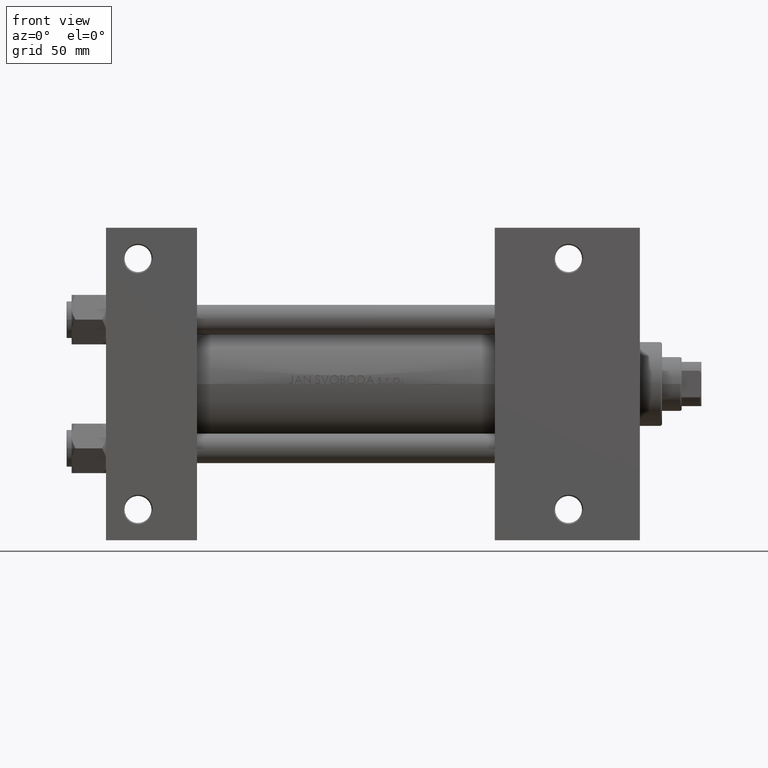
[diagram: clean part render]
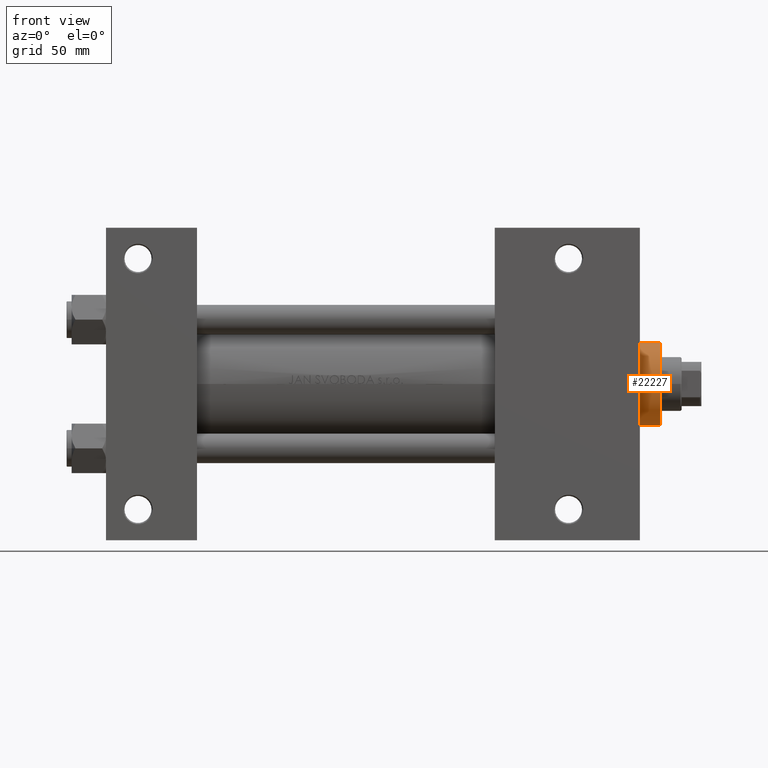
[diagram: same view with one face highlighted and labeled with its STEP entity id]
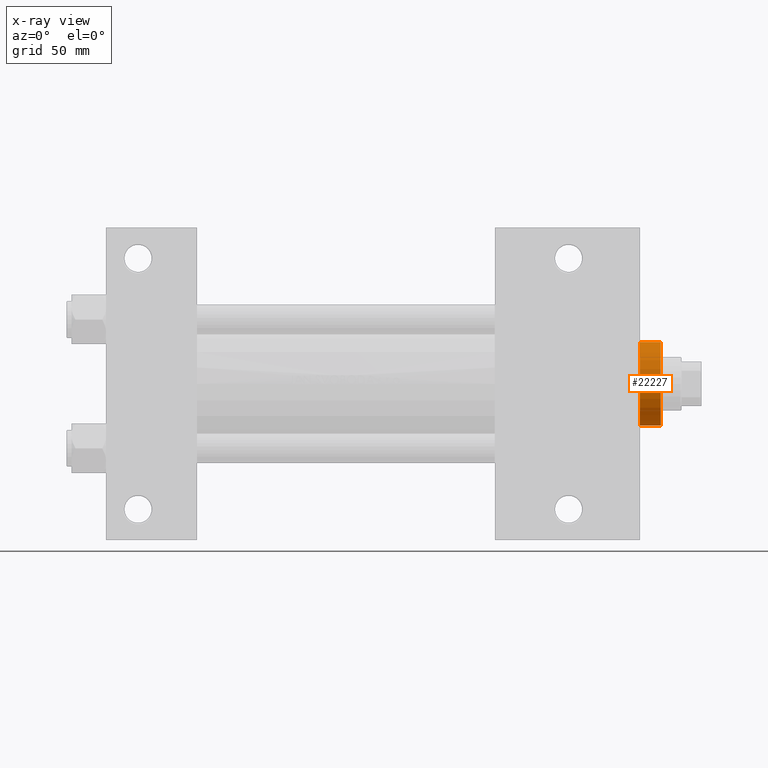
[diagram: x-ray of the same camera — body ghosted, the highlighted face saturated]
A machine part, front view. The second image highlights one B-rep face of the part: STEP entity #22227.
The next image is the same camera in x-ray: the body ghosted, the highlighted face saturated — about 0% of this face is hidden behind the body in this view.
In plain terms, the highlighted cylindrical surface (partial cylindrical patch) has radius 17 mm, axis along (-1, -0, 0).
Its self-contained STEP definition (entity closure, byte-faithful):
#438 = CYLINDRICAL_SURFACE ( 'NONE', #43711, 17.00000000000000000 ) ;
#2031 = EDGE_CURVE ( 'NONE', #34016, #34887, #43459, .T. ) ;
#5742 = LINE ( 'NONE', #9718, #41837 ) ;
#5744 = CARTESIAN_POINT ( 'NONE',  ( 17.00000000000000000, 2.081899558550500280E-15, 37.19999999999999574 ) ) ;
#6615 = AXIS2_PLACEMENT_3D ( 'NONE', #26515, #45918, #34240 ) ;
#7977 = VERTEX_POINT ( 'NONE', #9616 ) ;
#8154 = DIRECTION ( 'NONE',  ( -0.000000000000000000, -0.000000000000000000, -1.000000000000000000 ) ) ;
#8638 = FACE_OUTER_BOUND ( 'NONE', #25178, .T. ) ;
#9493 = EDGE_CURVE ( 'NONE', #7977, #13147, #5742, .T. ) ;
#9616 = CARTESIAN_POINT ( 'NONE',  ( -17.00000000000000000, 0.000000000000000000, 37.19999999999999574 ) ) ;
#9718 = CARTESIAN_POINT ( 'NONE',  ( -17.00000000000000000, 0.000000000000000000, 37.69999999999999574 ) ) ;
#13147 = VERTEX_POINT ( 'NONE', #32386 ) ;
#15652 = DIRECTION ( 'NONE',  ( -1.000000000000000000, 0.000000000000000000, 0.000000000000000000 ) ) ;
#16826 = CARTESIAN_POINT ( 'NONE',  ( 17.00000000000000000, 2.081899558550500280E-15, 37.69999999999999574 ) ) ;
#17009 = CIRCLE ( 'NONE', #28928, 17.00000000000000000 ) ;
#20929 = DIRECTION ( 'NONE',  ( -0.000000000000000000, -0.000000000000000000, -1.000000000000000000 ) ) ;
#21472 = DIRECTION ( 'NONE',  ( 1.000000000000000000, 0.000000000000000000, 0.000000000000000000 ) ) ;
#21741 = CIRCLE ( 'NONE', #6615, 17.00000000000000000 ) ;
#22227 = ADVANCED_FACE ( 'NONE', ( #8638 ), #438, .T. ) ;
#23419 = ORIENTED_EDGE ( 'NONE', *, *, #2031, .F. ) ;
#24532 = ORIENTED_EDGE ( 'NONE', *, *, #47406, .T. ) ;
#25178 = EDGE_LOOP ( 'NONE', ( #23419, #24532, #44239, #38496 ) ) ;
#26515 = CARTESIAN_POINT ( 'NONE',  ( 0.000000000000000000, 0.000000000000000000, 37.19999999999999574 ) ) ;
#28928 = AXIS2_PLACEMENT_3D ( 'NONE', #39918, #35929, #21472 ) ;
#28963 = VECTOR ( 'NONE', #32012, 1000.000000000000000 ) ;
#28999 = EDGE_CURVE ( 'NONE', #13147, #34887, #17009, .T. ) ;
#31571 = CARTESIAN_POINT ( 'NONE',  ( 0.000000000000000000, 0.000000000000000000, 37.69999999999999574 ) ) ;
#32012 = DIRECTION ( 'NONE',  ( -0.000000000000000000, -0.000000000000000000, -1.000000000000000000 ) ) ;
#32386 = CARTESIAN_POINT ( 'NONE',  ( -17.00000000000000000, 0.000000000000000000, 28.69999999999999929 ) ) ;
#34016 = VERTEX_POINT ( 'NONE', #5744 ) ;
#34240 = DIRECTION ( 'NONE',  ( 1.000000000000000000, 0.000000000000000000, 0.000000000000000000 ) ) ;
#34887 = VERTEX_POINT ( 'NONE', #35134 ) ;
#35134 = CARTESIAN_POINT ( 'NONE',  ( 17.00000000000000000, 2.081899558550500280E-15, 28.69999999999999929 ) ) ;
#35929 = DIRECTION ( 'NONE',  ( 0.000000000000000000, 0.000000000000000000, 1.000000000000000000 ) ) ;
#38496 = ORIENTED_EDGE ( 'NONE', *, *, #28999, .T. ) ;
#39918 = CARTESIAN_POINT ( 'NONE',  ( 0.000000000000000000, 0.000000000000000000, 28.69999999999999929 ) ) ;
#41837 = VECTOR ( 'NONE', #20929, 1000.000000000000000 ) ;
#43459 = LINE ( 'NONE', #16826, #28963 ) ;
#43711 = AXIS2_PLACEMENT_3D ( 'NONE', #31571, #8154, #15652 ) ;
#44239 = ORIENTED_EDGE ( 'NONE', *, *, #9493, .T. ) ;
#45918 = DIRECTION ( 'NONE',  ( 0.000000000000000000, 0.000000000000000000, -1.000000000000000000 ) ) ;
#47406 = EDGE_CURVE ( 'NONE', #34016, #7977, #21741, .T. ) ;